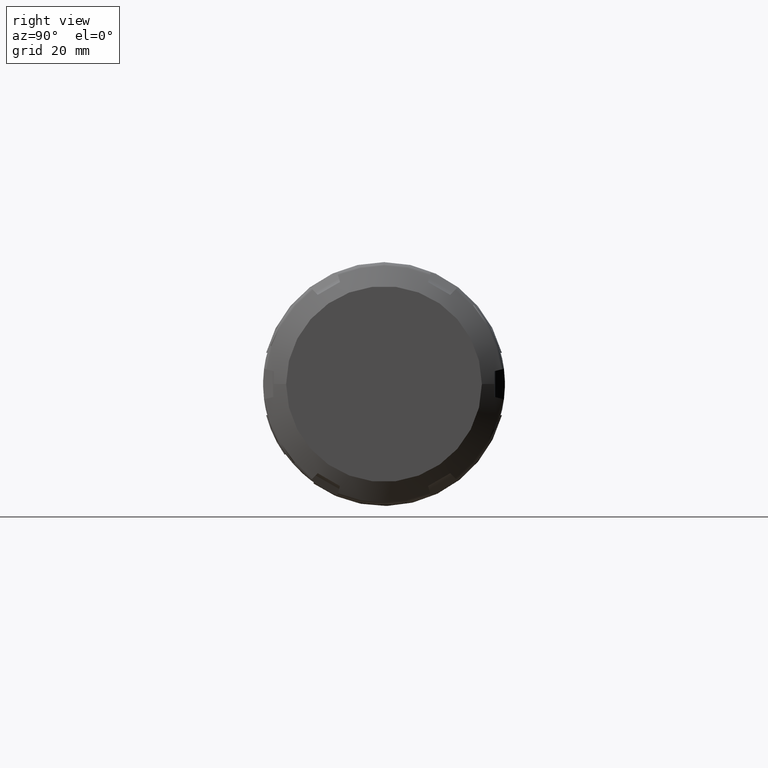
[diagram: clean part render]
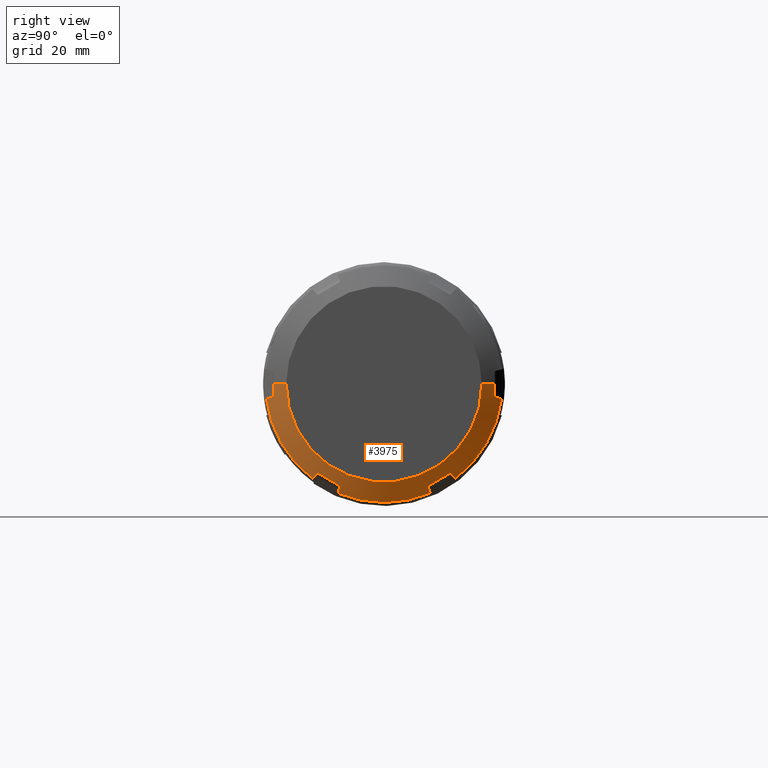
[diagram: same view with one face highlighted and labeled with its STEP entity id]
A machine part, right view. The second image highlights one B-rep face of the part: STEP entity #3975.
In plain terms, the highlighted conical surface has half-angle 60 deg.
Its self-contained STEP definition (entity closure, byte-faithful):
#3105=CARTESIAN_POINT('',(2.351130782476E1,1.727618510266E1,-2.322323035877E1));
#3106=CARTESIAN_POINT('',(2.332842823305E1,1.749804769833E1,-2.345297580209E1));
#3107=CARTESIAN_POINT('',(2.295978520802E1,1.794515018410E1,-2.391596397947E1));
#3108=CARTESIAN_POINT('',(2.258538211756E1,1.839901028735E1,-2.438594987460E1));
#3109=CARTESIAN_POINT('',(2.239674230313E1,1.862763043938E1,-2.462269297237E1));
#3111=CARTESIAN_POINT('',(2.351130782476E1,1.147381489730E1,-2.657323035877E1));
#3112=CARTESIAN_POINT('',(2.356105051412E1,1.211849164162E1,-2.620102606690E1));
#3113=CARTESIAN_POINT('',(2.362777625606E1,1.340784245763E1,-2.545661902620E1));
#3114=CARTESIAN_POINT('',(2.362777583851E1,1.534217003691E1,-2.433983447760E1));
#3115=CARTESIAN_POINT('',(2.356105010187E1,1.663151370114E1,-2.359543156598E1));
#3116=CARTESIAN_POINT('',(2.351130782476E1,1.727618510266E1,-2.322323035877E1));
#3118=CARTESIAN_POINT('',(2.239674230313E1,1.201006240397E1,-2.844334765900E1));
#3119=CARTESIAN_POINT('',(2.258533438069E1,1.191936989944E1,-2.812706530876E1));
#3120=CARTESIAN_POINT('',(2.295968976826E1,1.173930318813E1,-2.749909805885E1));
#3121=CARTESIAN_POINT('',(2.332838053240E1,1.156187195180E1,-2.688032180249E1));
#3122=CARTESIAN_POINT('',(2.351130782476E1,1.147381489730E1,-2.657323035877E1));
#3124=CARTESIAN_POINT('',(2.239674230313E1,0.E0,0.E0));
#3125=DIRECTION('',(-1.E0,0.E0,0.E0));
#3126=DIRECTION('',(0.E0,3.889898754327E-1,-9.212420294422E-1));
#3127=AXIS2_PLACEMENT_3D('',#3124,#3125,#3126);
#3129=CARTESIAN_POINT('',(2.351130782476E1,-1.147381489730E1,
-2.657323035877E1));
#3130=CARTESIAN_POINT('',(2.332842823305E1,-1.156184898978E1,
-2.688024172443E1));
#3131=CARTESIAN_POINT('',(2.295978520802E1,-1.173925727016E1,
-2.749893792389E1));
#3132=CARTESIAN_POINT('',(2.258538211756E1,-1.191934694315E1,
-2.812698525064E1));
#3133=CARTESIAN_POINT('',(2.239674230313E1,-1.201006240397E1,
-2.844334765900E1));
#3135=CARTESIAN_POINT('',(2.351130782476E1,-1.727618510266E1,
-2.322323035877E1));
#3136=CARTESIAN_POINT('',(2.356105051412E1,-1.663150835835E1,
-2.359543465064E1));
#3137=CARTESIAN_POINT('',(2.362777625606E1,-1.534215754233E1,
-2.433984169135E1));
#3138=CARTESIAN_POINT('',(2.362777583851E1,-1.340782996305E1,
-2.545662623995E1));
#3139=CARTESIAN_POINT('',(2.356105010187E1,-1.211848629883E1,
-2.620102915156E1));
#3140=CARTESIAN_POINT('',(2.351130782476E1,-1.147381489730E1,
-2.657323035877E1));
#3142=CARTESIAN_POINT('',(2.239674230313E1,-1.862763043938E1,
-2.462269297237E1));
#3143=CARTESIAN_POINT('',(2.258533438069E1,-1.839906814157E1,
-2.438600978440E1));
#3144=CARTESIAN_POINT('',(2.295968976826E1,-1.794526590606E1,
-2.391608381307E1));
#3145=CARTESIAN_POINT('',(2.332838053240E1,-1.749810556696E1,
-2.345303572681E1));
#3146=CARTESIAN_POINT('',(2.351130782476E1,-1.727618510266E1,
-2.322323035877E1));
#3148=CARTESIAN_POINT('',(2.239674230313E1,0.E0,0.E0));
#3149=DIRECTION('',(-1.E0,0.E0,0.E0));
#3150=DIRECTION('',(0.E0,-6.033240628145E-1,-7.974961286608E-1));
#3151=AXIS2_PLACEMENT_3D('',#3148,#3149,#3150);
#3153=CARTESIAN_POINT('',(2.351130782476E1,-2.874999999997E1,-3.35E0));
#3154=CARTESIAN_POINT('',(2.332842823305E1,-2.905989668812E1,
-3.427265922344E0));
#3155=CARTESIAN_POINT('',(2.295978520802E1,-2.968440745426E1,
-3.582973944421E0));
#3156=CARTESIAN_POINT('',(2.258538211756E1,-3.031835723049E1,
-3.741035376033E0));
#3157=CARTESIAN_POINT('',(2.239674230313E1,-3.063769284335E1,
-3.820654686622E0));
#3159=CARTESIAN_POINT('',(2.362361162515E1,-2.874999999997E1,0.E0));
#3160=CARTESIAN_POINT('',(2.362361162515E1,-2.874999999997E1,
-3.723033754199E-1));
#3161=CARTESIAN_POINT('',(2.361525781864E1,-2.874999999997E1,
-1.116855572672E0));
#3162=CARTESIAN_POINT('',(2.357773435590E1,-2.874999999997E1,
-2.233506677949E0));
#3163=CARTESIAN_POINT('',(2.353617556265E1,-2.874999999997E1,
-2.977849684408E0));
#3164=CARTESIAN_POINT('',(2.351130782476E1,-2.874999999997E1,-3.35E0));
#3166=DIRECTION('',(-5.E-1,-8.660254037844E-1,0.E0));
#3167=VECTOR('',#3166,3.752776749692E0);
#3168=CARTESIAN_POINT('',(2.55E1,-2.55E1,0.E0));
#3169=LINE('',#3168,#3167);
#3170=CARTESIAN_POINT('',(2.55E1,0.E0,0.E0));
#3171=DIRECTION('',(-1.E0,0.E0,0.E0));
#3172=DIRECTION('',(0.E0,1.E0,0.E0));
#3173=AXIS2_PLACEMENT_3D('',#3170,#3171,#3172);
#3175=DIRECTION('',(-5.E-1,8.660254037844E-1,0.E0));
#3176=VECTOR('',#3175,3.752776749692E0);
#3177=CARTESIAN_POINT('',(2.55E1,2.55E1,0.E0));
#3178=LINE('',#3177,#3176);
#3179=CARTESIAN_POINT('',(2.351130782476E1,2.874999999997E1,-3.35E0));
#3180=CARTESIAN_POINT('',(2.353617695757E1,2.874999999997E1,-2.977828809184E0));
#3181=CARTESIAN_POINT('',(2.357773662637E1,2.874999999997E1,-2.233458033279E0));
#3182=CARTESIAN_POINT('',(2.361525848375E1,2.874999999997E1,-1.116817767542E0));
#3183=CARTESIAN_POINT('',(2.362361162515E1,2.874999999997E1,
-3.722872262064E-1));
#3184=CARTESIAN_POINT('',(2.362361162515E1,2.874999999997E1,0.E0));
#3186=CARTESIAN_POINT('',(2.239674230313E1,3.063769284335E1,-3.820654686622E0));
#3187=CARTESIAN_POINT('',(2.258533438069E1,3.031843804101E1,-3.741055524357E0));
#3188=CARTESIAN_POINT('',(2.295968976826E1,2.968456909419E1,-3.583014245782E0));
#3189=CARTESIAN_POINT('',(2.332838053240E1,2.905997751876E1,-3.427286075687E0));
#3190=CARTESIAN_POINT('',(2.351130782476E1,2.874999999997E1,-3.35E0));
#3192=CARTESIAN_POINT('',(2.239674230313E1,0.E0,0.E0));
#3193=DIRECTION('',(-1.E0,0.E0,0.E0));
#3194=DIRECTION('',(0.E0,9.923139382473E-1,-1.237459007814E-1));
#3195=AXIS2_PLACEMENT_3D('',#3192,#3193,#3194);
#3456=CARTESIAN_POINT('',(2.362361162515E1,-2.874999999997E1,0.E0));
#3523=CARTESIAN_POINT('',(2.362361162515E1,2.874999999997E1,0.E0));
#3813=CARTESIAN_POINT('',(2.55E1,2.55E1,0.E0));
#3814=CARTESIAN_POINT('',(2.55E1,-2.55E1,0.E0));
#3815=VERTEX_POINT('',#3813);
#3816=VERTEX_POINT('',#3814);
#3827=VERTEX_POINT('',#3523);
#3828=VERTEX_POINT('',#3179);
#3829=VERTEX_POINT('',#3186);
#3882=VERTEX_POINT('',#3456);
#3884=VERTEX_POINT('',#3153);
#3885=VERTEX_POINT('',#3157);
#3895=VERTEX_POINT('',#3129);
#3896=VERTEX_POINT('',#3133);
#3897=VERTEX_POINT('',#3135);
#3898=VERTEX_POINT('',#3142);
#3910=VERTEX_POINT('',#3105);
#3911=VERTEX_POINT('',#3109);
#3912=VERTEX_POINT('',#3111);
#3913=VERTEX_POINT('',#3118);
#3937=CARTESIAN_POINT('',(2.394837115156E1,0.E0,0.E0));
#3938=DIRECTION('',(-1.E0,0.E0,0.E0));
#3939=DIRECTION('',(0.E0,1.E0,0.E0));
#3940=AXIS2_PLACEMENT_3D('',#3937,#3938,#3939);
#3941=CONICAL_SURFACE('',#3940,2.818749999998E1,6.E1);
#3943=ORIENTED_EDGE('',*,*,#3942,.F.);
#3945=ORIENTED_EDGE('',*,*,#3944,.F.);
#3947=ORIENTED_EDGE('',*,*,#3946,.F.);
#3949=ORIENTED_EDGE('',*,*,#3948,.T.);
#3951=ORIENTED_EDGE('',*,*,#3950,.F.);
#3953=ORIENTED_EDGE('',*,*,#3952,.F.);
#3955=ORIENTED_EDGE('',*,*,#3954,.F.);
#3957=ORIENTED_EDGE('',*,*,#3956,.T.);
#3959=ORIENTED_EDGE('',*,*,#3958,.F.);
#3961=ORIENTED_EDGE('',*,*,#3960,.F.);
#3963=ORIENTED_EDGE('',*,*,#3962,.F.);
#3964=ORIENTED_EDGE('',*,*,#3930,.F.);
#3966=ORIENTED_EDGE('',*,*,#3965,.T.);
#3968=ORIENTED_EDGE('',*,*,#3967,.F.);
#3970=ORIENTED_EDGE('',*,*,#3969,.F.);
#3972=ORIENTED_EDGE('',*,*,#3971,.T.);
#3973=EDGE_LOOP('',(#3943,#3945,#3947,#3949,#3951,#3953,#3955,#3957,#3959,#3961,
#3963,#3964,#3966,#3968,#3970,#3972));
#3974=FACE_OUTER_BOUND('',#3973,.F.);
#3975=ADVANCED_FACE('',(#3974),#3941,.T.);
#3110=B_SPLINE_CURVE_WITH_KNOTS('',3,(#3105,#3106,#3107,#3108,#3109),
.UNSPECIFIED.,.F.,.F.,(4,1,4),(0.E0,5.E-1,1.E0),.UNSPECIFIED.);
#3117=B_SPLINE_CURVE_WITH_KNOTS('',3,(#3111,#3112,#3113,#3114,#3115,#3116),
.UNSPECIFIED.,.F.,.F.,(4,1,1,4),(0.E0,3.333333333333E-1,6.666666666667E-1,1.E0),
.UNSPECIFIED.);
#3123=B_SPLINE_CURVE_WITH_KNOTS('',3,(#3118,#3119,#3120,#3121,#3122),
.UNSPECIFIED.,.F.,.F.,(4,1,4),(0.E0,5.E-1,1.E0),.UNSPECIFIED.);
#3128=CIRCLE('',#3127,3.087499999997E1);
#3134=B_SPLINE_CURVE_WITH_KNOTS('',3,(#3129,#3130,#3131,#3132,#3133),
.UNSPECIFIED.,.F.,.F.,(4,1,4),(0.E0,5.E-1,1.E0),.UNSPECIFIED.);
#3141=B_SPLINE_CURVE_WITH_KNOTS('',3,(#3135,#3136,#3137,#3138,#3139,#3140),
.UNSPECIFIED.,.F.,.F.,(4,1,1,4),(0.E0,3.333333333333E-1,6.666666666667E-1,1.E0),
.UNSPECIFIED.);
#3147=B_SPLINE_CURVE_WITH_KNOTS('',3,(#3142,#3143,#3144,#3145,#3146),
.UNSPECIFIED.,.F.,.F.,(4,1,4),(0.E0,5.E-1,1.E0),.UNSPECIFIED.);
#3152=CIRCLE('',#3151,3.087499999997E1);
#3158=B_SPLINE_CURVE_WITH_KNOTS('',3,(#3153,#3154,#3155,#3156,#3157),
.UNSPECIFIED.,.F.,.F.,(4,1,4),(0.E0,5.E-1,1.E0),.UNSPECIFIED.);
#3165=B_SPLINE_CURVE_WITH_KNOTS('',3,(#3159,#3160,#3161,#3162,#3163,#3164),
.UNSPECIFIED.,.F.,.F.,(4,1,1,4),(0.E0,3.333333333333E-1,6.666666666667E-1,1.E0),
.UNSPECIFIED.);
#3174=CIRCLE('',#3173,2.55E1);
#3185=B_SPLINE_CURVE_WITH_KNOTS('',3,(#3179,#3180,#3181,#3182,#3183,#3184),
.UNSPECIFIED.,.F.,.F.,(4,1,1,4),(0.E0,3.333333333333E-1,6.666666666667E-1,1.E0),
.UNSPECIFIED.);
#3191=B_SPLINE_CURVE_WITH_KNOTS('',3,(#3186,#3187,#3188,#3189,#3190),
.UNSPECIFIED.,.F.,.F.,(4,1,4),(0.E0,5.E-1,1.E0),.UNSPECIFIED.);
#3196=CIRCLE('',#3195,3.087499999997E1);
#3930=EDGE_CURVE('',#3815,#3816,#3174,.T.);
#3942=EDGE_CURVE('',#3910,#3911,#3110,.T.);
#3944=EDGE_CURVE('',#3912,#3910,#3117,.T.);
#3946=EDGE_CURVE('',#3913,#3912,#3123,.T.);
#3948=EDGE_CURVE('',#3913,#3896,#3128,.T.);
#3950=EDGE_CURVE('',#3895,#3896,#3134,.T.);
#3952=EDGE_CURVE('',#3897,#3895,#3141,.T.);
#3954=EDGE_CURVE('',#3898,#3897,#3147,.T.);
#3956=EDGE_CURVE('',#3898,#3885,#3152,.T.);
#3958=EDGE_CURVE('',#3884,#3885,#3158,.T.);
#3960=EDGE_CURVE('',#3882,#3884,#3165,.T.);
#3962=EDGE_CURVE('',#3816,#3882,#3169,.T.);
#3965=EDGE_CURVE('',#3815,#3827,#3178,.T.);
#3967=EDGE_CURVE('',#3828,#3827,#3185,.T.);
#3969=EDGE_CURVE('',#3829,#3828,#3191,.T.);
#3971=EDGE_CURVE('',#3829,#3911,#3196,.T.);